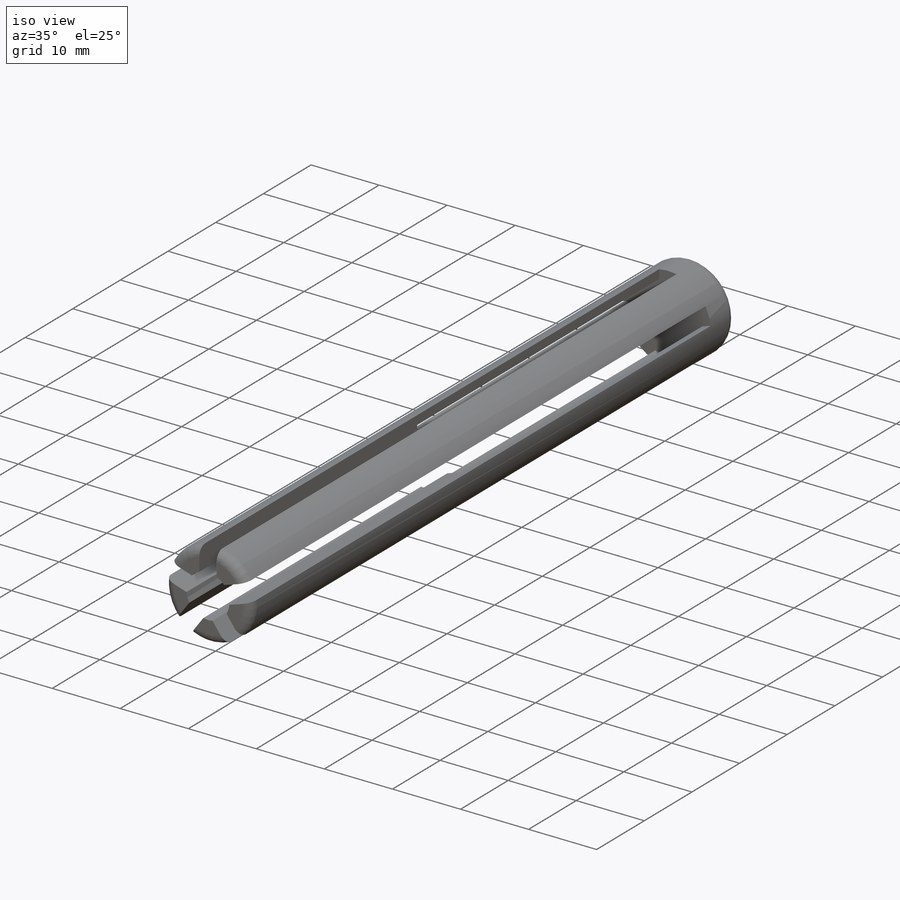
[diagram: iso view]
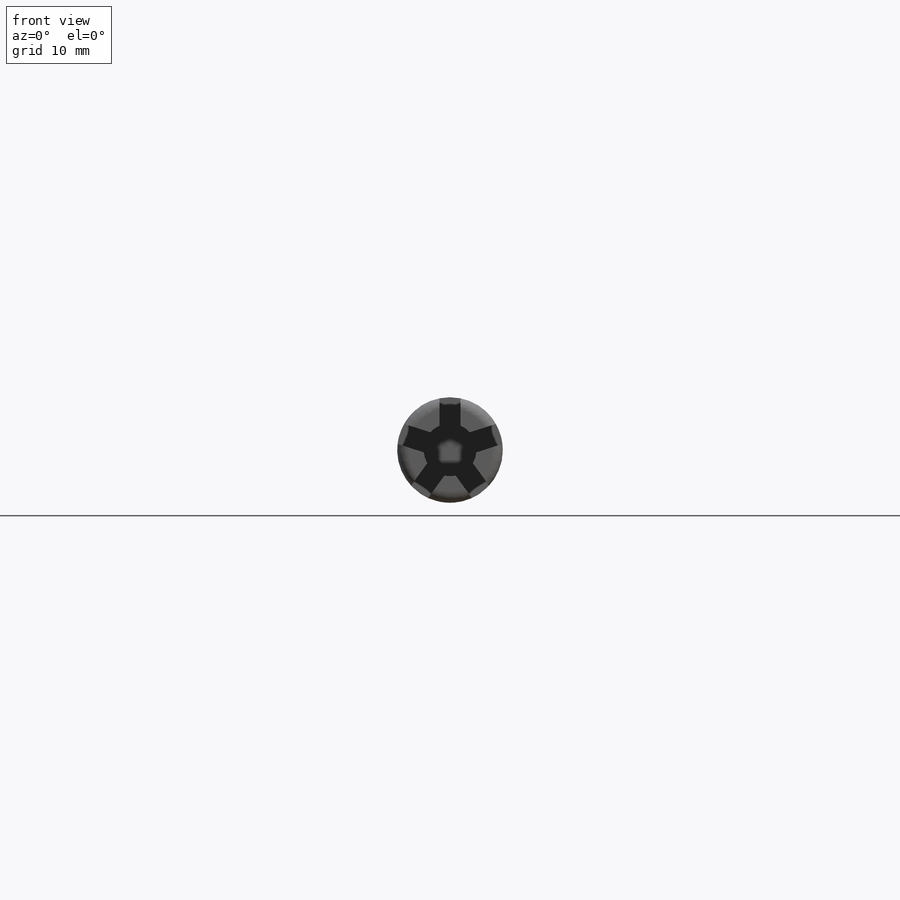
[diagram: front view]
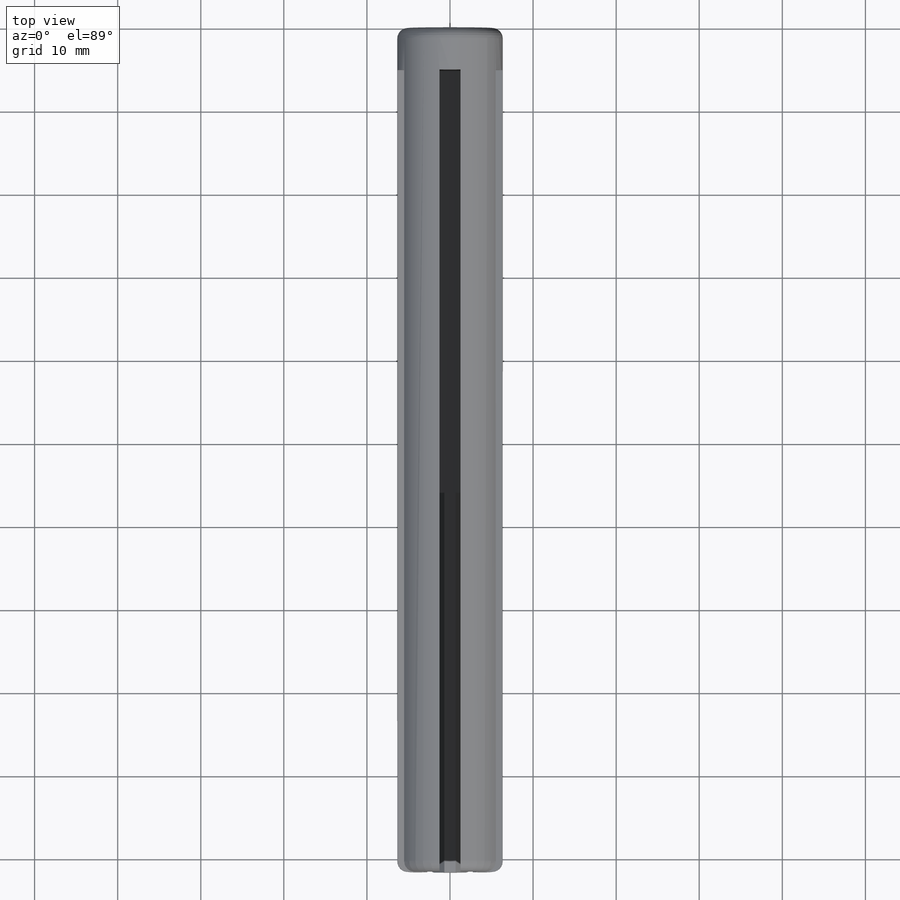
[diagram: top view]
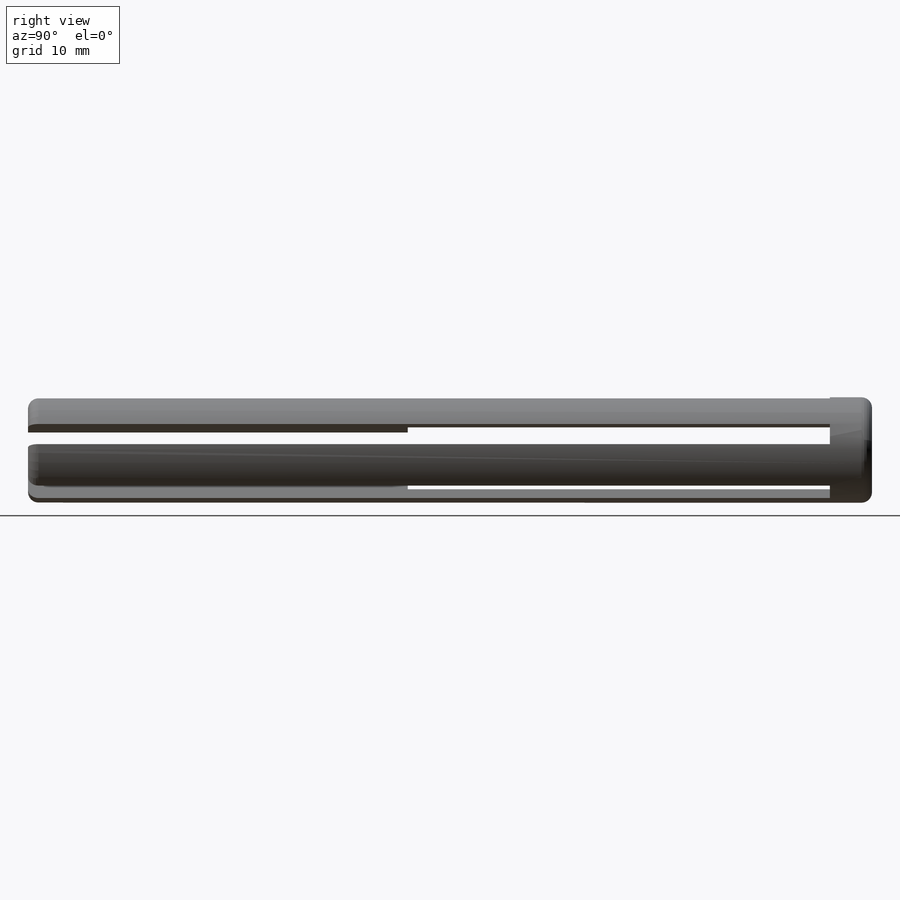
[diagram: right view]
SOLIDWORKS PART (.sldprt)
format: sldprt  version: not decoded by parser v0  size: 232,448 bytes
history: native  units: mm
features: sketch x4, cut_extrude x3, fillet x2, material x1, extrude x1 (+13 scaffold rows collapsed)
feature tree (24):
  scaffold x13  (default folders/planes/origin — collapsed)
  material  "Material <not specified>"
  sketch  "Sketch1"  dims[D1=12.7mm]
  extrude  "Boss-Extrude1"  Depth=101.6mm
  fillet  "Fillet1"  Radius=1.27mm
  sketch  "Sketch2"  dims[D1=6.35mm]
  cut_extrude  "Cut-Extrude1"  Depth=45.72mm
  sketch  "Sketch3"  dims[D1=10.16mm]
  cut_extrude  "Cut-Extrude2"  Depth=50.8mm
  fillet  "Fillet2"  Radius=1.27mm
  sketch  "Sketch4"  dims[D2=6.35mm D1=2.54mm D3=5.0]
  cut_extrude  "Cut-Extrude3"  Depth=96.52mm
decode coverage: 10 of 10 modeling features carry decoded parameters
note: suppression state not decoded; provenance and decode notes live in map.json
